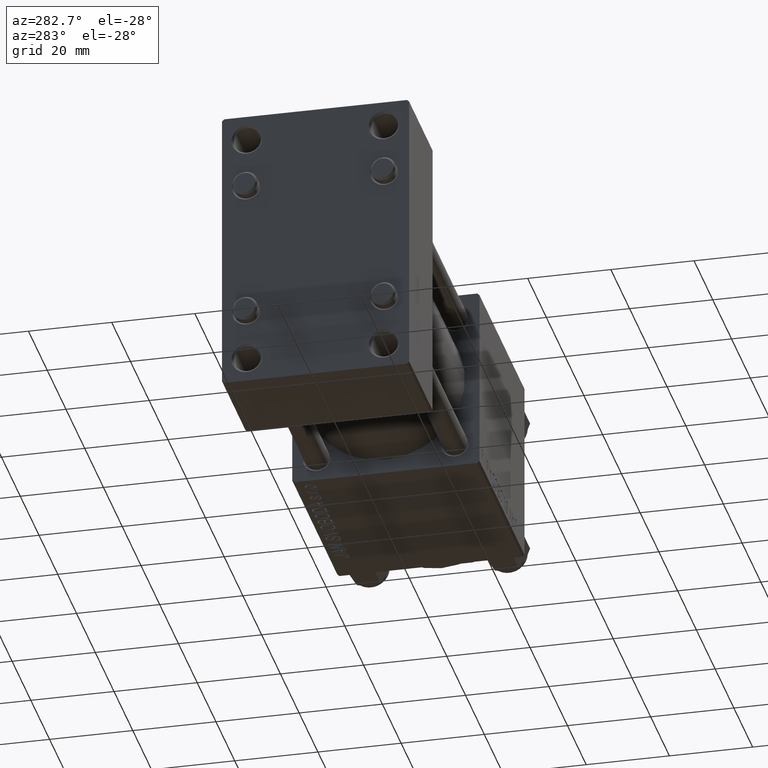
[diagram: clean part render]
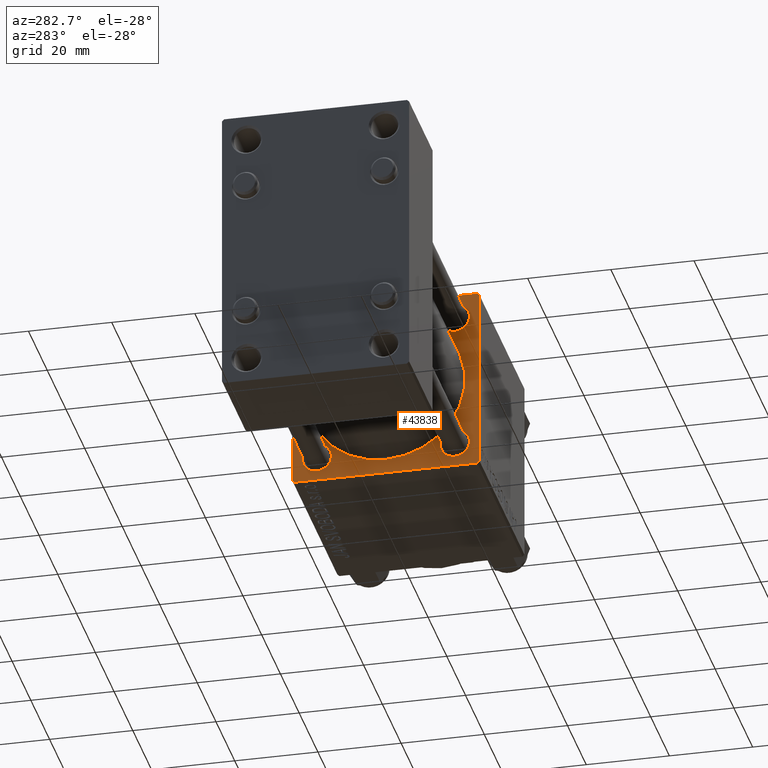
[diagram: same view with one face highlighted and labeled with its STEP entity id]
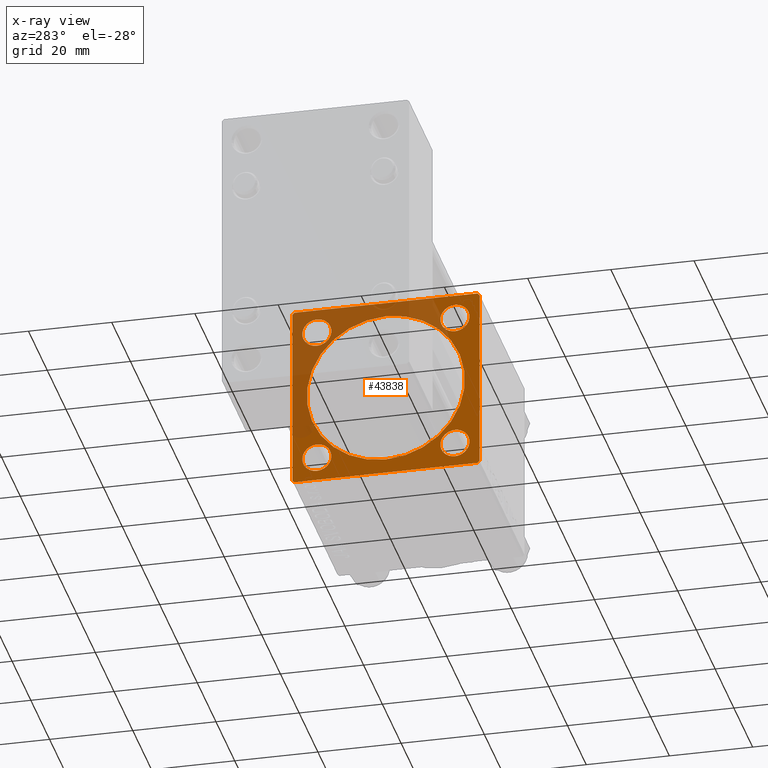
[diagram: x-ray of the same camera — body ghosted, the highlighted face saturated]
A machine part, auxiliary view. The second image highlights one B-rep face of the part: STEP entity #43838.
The next image is the same camera in x-ray: the body ghosted, the highlighted face saturated — about 40% of this face is hidden behind the body in this view.
In plain terms, the highlighted planar face has unit normal (-1, 0, 0).
Its self-contained STEP definition (entity closure, byte-faithful):
#23 = DIRECTION ( 'NONE',  ( 1.000000000000000000, -0.000000000000000000, 0.000000000000000000 ) ) ;
#196 = DIRECTION ( 'NONE',  ( 1.000000000000000000, 0.000000000000000000, 0.000000000000000000 ) ) ;
#1007 = CIRCLE ( 'NONE', #47787, 3.500000000000016875 ) ;
#1367 = DIRECTION ( 'NONE',  ( 0.000000000000000000, 0.000000000000000000, 1.000000000000000000 ) ) ;
#1388 = AXIS2_PLACEMENT_3D ( 'NONE', #5148, #20825, #1367 ) ;
#1623 = DIRECTION ( 'NONE',  ( 0.000000000000000000, 0.000000000000000000, 1.000000000000000000 ) ) ;
#2427 = EDGE_CURVE ( 'NONE', #37750, #40066, #20123, .T. ) ;
#2621 = VECTOR ( 'NONE', #45109, 1000.000000000000114 ) ;
#2850 = FACE_OUTER_BOUND ( 'NONE', #37870, .T. ) ;
#2966 = DIRECTION ( 'NONE',  ( 1.000000000000000000, -0.000000000000000000, 0.000000000000000000 ) ) ;
#3200 = VERTEX_POINT ( 'NONE', #33946 ) ;
#3301 = EDGE_CURVE ( 'NONE', #3200, #23792, #48404, .T. ) ;
#3533 = CARTESIAN_POINT ( 'NONE',  ( 75.00000000000001421, -2.602085213965210642E-15, 19.00000000000000000 ) ) ;
#4818 = AXIS2_PLACEMENT_3D ( 'NONE', #27361, #31143, #42526 ) ;
#5148 = CARTESIAN_POINT ( 'NONE',  ( 75.00000000000001421, -16.59999999999999076, 16.60000000000000853 ) ) ;
#5262 = ORIENTED_EDGE ( 'NONE', *, *, #48219, .T. ) ;
#5764 = LINE ( 'NONE', #9573, #12476 ) ;
#5867 = VECTOR ( 'NONE', #14185, 1000.000000000000114 ) ;
#5956 = EDGE_CURVE ( 'NONE', #39677, #9238, #8963, .T. ) ;
#6247 = VERTEX_POINT ( 'NONE', #32228 ) ;
#6844 = EDGE_CURVE ( 'NONE', #27018, #30174, #49234, .T. ) ;
#7336 = VECTOR ( 'NONE', #38091, 999.9999999999998863 ) ;
#7411 = EDGE_CURVE ( 'NONE', #18271, #21492, #10603, .T. ) ;
#8075 = LINE ( 'NONE', #20212, #30470 ) ;
#8400 = CARTESIAN_POINT ( 'NONE',  ( 75.00000000000001421, 22.50000000000000355, 22.50000000000000355 ) ) ;
#8728 = VERTEX_POINT ( 'NONE', #33693 ) ;
#8963 = CIRCLE ( 'NONE', #28332, 3.500000000000016875 ) ;
#9238 = VERTEX_POINT ( 'NONE', #42793 ) ;
#9516 = AXIS2_PLACEMENT_3D ( 'NONE', #43167, #16390, #38610 ) ;
#9573 = CARTESIAN_POINT ( 'NONE',  ( 75.00000000000001421, 22.25000000000029843, 22.24999999999968381 ) ) ;
#9728 = ORIENTED_EDGE ( 'NONE', *, *, #30131, .T. ) ;
#9883 = VERTEX_POINT ( 'NONE', #15787 ) ;
#9938 = CIRCLE ( 'NONE', #47876, 3.500000000000016875 ) ;
#10206 = FACE_BOUND ( 'NONE', #36630, .T. ) ;
#10603 = LINE ( 'NONE', #37607, #32368 ) ;
#11009 = LINE ( 'NONE', #37259, #2621 ) ;
#11586 = CARTESIAN_POINT ( 'NONE',  ( 75.00000000000001421, -2.602085213965210642E-15, 0.000000000000000000 ) ) ;
#11671 = CARTESIAN_POINT ( 'NONE',  ( 75.00000000000001421, 16.59999999999999787, -16.60000000000000497 ) ) ;
#12150 = EDGE_CURVE ( 'NONE', #8728, #38850, #13062, .T. ) ;
#12476 = VECTOR ( 'NONE', #28760, 1000.000000000000000 ) ;
#12673 = DIRECTION ( 'NONE',  ( 1.000000000000000000, -0.000000000000000000, 0.000000000000000000 ) ) ;
#13062 = CIRCLE ( 'NONE', #13887, 3.500000000000016875 ) ;
#13548 = EDGE_CURVE ( 'NONE', #9238, #39677, #1007, .T. ) ;
#13622 = CARTESIAN_POINT ( 'NONE',  ( 75.00000000000001421, -22.49999999999999645, -21.99999999999997868 ) ) ;
#13887 = AXIS2_PLACEMENT_3D ( 'NONE', #41371, #2966, #49210 ) ;
#13943 = EDGE_CURVE ( 'NONE', #21492, #14336, #18709, .T. ) ;
#13990 = DIRECTION ( 'NONE',  ( -0.000000000000000000, 0.000000000000000000, 1.000000000000000000 ) ) ;
#14185 = DIRECTION ( 'NONE',  ( -0.000000000000000000, -0.7071067811865474617, -0.7071067811865474617 ) ) ;
#14233 = CARTESIAN_POINT ( 'NONE',  ( 75.00000000000001421, 22.50000000000000355, -21.99999999999996803 ) ) ;
#14274 = ORIENTED_EDGE ( 'NONE', *, *, #7411, .T. ) ;
#14336 = VERTEX_POINT ( 'NONE', #31244 ) ;
#14515 = CARTESIAN_POINT ( 'NONE',  ( 75.00000000000001421, -16.59999999999999076, 13.09999999999999076 ) ) ;
#15748 = EDGE_CURVE ( 'NONE', #40066, #37750, #16405, .T. ) ;
#15787 = CARTESIAN_POINT ( 'NONE',  ( 75.00000000000001421, -16.59999999999999076, 20.10000000000002274 ) ) ;
#15947 = DIRECTION ( 'NONE',  ( 0.000000000000000000, 0.000000000000000000, 1.000000000000000000 ) ) ;
#16390 = DIRECTION ( 'NONE',  ( 1.000000000000000000, -0.000000000000000000, 0.000000000000000000 ) ) ;
#16405 = CIRCLE ( 'NONE', #28480, 3.500000000000016875 ) ;
#17206 = DIRECTION ( 'NONE',  ( 0.000000000000000000, 0.000000000000000000, 1.000000000000000000 ) ) ;
#17751 = ORIENTED_EDGE ( 'NONE', *, *, #3301, .T. ) ;
#18021 = LINE ( 'NONE', #40262, #37551 ) ;
#18266 = CARTESIAN_POINT ( 'NONE',  ( 75.00000000000001421, 0.000000000000000000, 0.000000000000000000 ) ) ;
#18271 = VERTEX_POINT ( 'NONE', #37355 ) ;
#18343 = CIRCLE ( 'NONE', #49808, 19.00000000000000000 ) ;
#18465 = CARTESIAN_POINT ( 'NONE',  ( 75.00000000000001421, 22.24999999999999289, -22.24999999999999289 ) ) ;
#18709 = LINE ( 'NONE', #18465, #5867 ) ;
#19216 = CARTESIAN_POINT ( 'NONE',  ( 75.00000000000001421, -22.49999999999999645, 21.99999999999997868 ) ) ;
#20123 = CIRCLE ( 'NONE', #48371, 3.500000000000016875 ) ;
#20212 = CARTESIAN_POINT ( 'NONE',  ( 75.00000000000001421, -22.49999999999999645, 22.49999999999999289 ) ) ;
#20825 = DIRECTION ( 'NONE',  ( 1.000000000000000000, -0.000000000000000000, 0.000000000000000000 ) ) ;
#20828 = CARTESIAN_POINT ( 'NONE',  ( 75.00000000000001421, 16.59999999999999787, -16.60000000000000497 ) ) ;
#20996 = EDGE_LOOP ( 'NONE', ( #26101, #28957 ) ) ;
#21049 = EDGE_CURVE ( 'NONE', #41313, #38207, #11009, .T. ) ;
#21492 = VERTEX_POINT ( 'NONE', #14233 ) ;
#21495 = CARTESIAN_POINT ( 'NONE',  ( 75.00000000000001421, 16.59999999999999787, 16.60000000000000497 ) ) ;
#23792 = VERTEX_POINT ( 'NONE', #3533 ) ;
#23815 = DIRECTION ( 'NONE',  ( 0.000000000000000000, -1.000000000000000000, -2.312964634635742957E-16 ) ) ;
#24302 = CARTESIAN_POINT ( 'NONE',  ( 75.00000000000001421, -21.99999999999996803, 22.49999999999999289 ) ) ;
#24790 = CARTESIAN_POINT ( 'NONE',  ( 75.00000000000001421, -16.59999999999999076, 16.60000000000000853 ) ) ;
#26101 = ORIENTED_EDGE ( 'NONE', *, *, #5956, .T. ) ;
#27018 = VERTEX_POINT ( 'NONE', #37064 ) ;
#27361 = CARTESIAN_POINT ( 'NONE',  ( 75.00000000000001421, -2.602085213965210642E-15, 0.000000000000000000 ) ) ;
#28060 = DIRECTION ( 'NONE',  ( 0.000000000000000000, 0.000000000000000000, 1.000000000000000000 ) ) ;
#28332 = AXIS2_PLACEMENT_3D ( 'NONE', #11671, #23, #15947 ) ;
#28480 = AXIS2_PLACEMENT_3D ( 'NONE', #30265, #29521, #41148 ) ;
#28760 = DIRECTION ( 'NONE',  ( 0.000000000000000000, 0.7071067811865378028, -0.7071067811865573427 ) ) ;
#28841 = ORIENTED_EDGE ( 'NONE', *, *, #15748, .T. ) ;
#28957 = ORIENTED_EDGE ( 'NONE', *, *, #13548, .T. ) ;
#29521 = DIRECTION ( 'NONE',  ( 1.000000000000000000, -0.000000000000000000, 0.000000000000000000 ) ) ;
#29697 = VERTEX_POINT ( 'NONE', #14515 ) ;
#29791 = DIRECTION ( 'NONE',  ( 1.000000000000000000, -0.000000000000000000, 0.000000000000000000 ) ) ;
#30053 = EDGE_LOOP ( 'NONE', ( #44750, #17751 ) ) ;
#30118 = PLANE ( 'NONE',  #49097 ) ;
#30131 = EDGE_CURVE ( 'NONE', #6247, #18271, #5764, .T. ) ;
#30174 = VERTEX_POINT ( 'NONE', #13622 ) ;
#30265 = CARTESIAN_POINT ( 'NONE',  ( 75.00000000000001421, 16.59999999999999787, 16.60000000000000497 ) ) ;
#30470 = VECTOR ( 'NONE', #31560, 1000.000000000000000 ) ;
#31143 = DIRECTION ( 'NONE',  ( 1.000000000000000000, 0.000000000000000000, 0.000000000000000000 ) ) ;
#31244 = CARTESIAN_POINT ( 'NONE',  ( 75.00000000000001421, 21.99999999999998934, -22.49999999999999645 ) ) ;
#31560 = DIRECTION ( 'NONE',  ( 0.000000000000000000, 0.000000000000000000, -1.000000000000000000 ) ) ;
#32228 = CARTESIAN_POINT ( 'NONE',  ( 75.00000000000001421, 21.99999999999997513, 22.50000000000000355 ) ) ;
#32368 = VECTOR ( 'NONE', #49241, 1000.000000000000000 ) ;
#32660 = ORIENTED_EDGE ( 'NONE', *, *, #42263, .T. ) ;
#32716 = ORIENTED_EDGE ( 'NONE', *, *, #45302, .F. ) ;
#33159 = FACE_BOUND ( 'NONE', #20996, .T. ) ;
#33491 = EDGE_CURVE ( 'NONE', #14336, #27018, #18021, .T. ) ;
#33693 = CARTESIAN_POINT ( 'NONE',  ( 75.00000000000001421, -16.59999999999999076, -20.10000000000002274 ) ) ;
#33946 = CARTESIAN_POINT ( 'NONE',  ( 75.00000000000001421, -2.752562955852396712E-16, -19.00000000000000000 ) ) ;
#35932 = ORIENTED_EDGE ( 'NONE', *, *, #12150, .T. ) ;
#36212 = DIRECTION ( 'NONE',  ( 1.000000000000000000, -0.000000000000000000, 0.000000000000000000 ) ) ;
#36469 = CARTESIAN_POINT ( 'NONE',  ( 75.00000000000001421, 16.59999999999999787, 20.10000000000001918 ) ) ;
#36475 = CARTESIAN_POINT ( 'NONE',  ( 75.00000000000001421, 16.59999999999999787, -13.09999999999998721 ) ) ;
#36630 = EDGE_LOOP ( 'NONE', ( #5262, #43951 ) ) ;
#36706 = ORIENTED_EDGE ( 'NONE', *, *, #38394, .F. ) ;
#36801 = EDGE_CURVE ( 'NONE', #29697, #9883, #48188, .T. ) ;
#37064 = CARTESIAN_POINT ( 'NONE',  ( 75.00000000000001421, -21.99999999999998224, -22.50000000000000000 ) ) ;
#37196 = FACE_BOUND ( 'NONE', #49275, .T. ) ;
#37259 = CARTESIAN_POINT ( 'NONE',  ( 75.00000000000001421, -22.24999999999998579, 22.24999999999998579 ) ) ;
#37355 = CARTESIAN_POINT ( 'NONE',  ( 75.00000000000001421, 22.50000000000000355, 21.99999999999996092 ) ) ;
#37551 = VECTOR ( 'NONE', #48358, 1000.000000000000000 ) ;
#37607 = CARTESIAN_POINT ( 'NONE',  ( 75.00000000000001421, 22.50000000000000355, 22.50000000000000355 ) ) ;
#37693 = ORIENTED_EDGE ( 'NONE', *, *, #6844, .T. ) ;
#37750 = VERTEX_POINT ( 'NONE', #36469 ) ;
#37870 = EDGE_LOOP ( 'NONE', ( #47857, #37693, #36706, #44319, #32716, #9728, #14274, #47224 ) ) ;
#38091 = DIRECTION ( 'NONE',  ( 0.000000000000000000, -0.7071067811865425767, 0.7071067811865525687 ) ) ;
#38207 = VERTEX_POINT ( 'NONE', #24302 ) ;
#38343 = CARTESIAN_POINT ( 'NONE',  ( 75.00000000000001421, -22.25000000000015277, -22.24999999999984013 ) ) ;
#38394 = EDGE_CURVE ( 'NONE', #41313, #30174, #8075, .T. ) ;
#38610 = DIRECTION ( 'NONE',  ( 0.000000000000000000, 0.000000000000000000, 1.000000000000000000 ) ) ;
#38850 = VERTEX_POINT ( 'NONE', #38959 ) ;
#38959 = CARTESIAN_POINT ( 'NONE',  ( 75.00000000000001421, -16.59999999999999076, -13.09999999999999076 ) ) ;
#39677 = VERTEX_POINT ( 'NONE', #36475 ) ;
#40066 = VERTEX_POINT ( 'NONE', #44521 ) ;
#40262 = CARTESIAN_POINT ( 'NONE',  ( 75.00000000000001421, 22.50000000000000355, -22.49999999999999645 ) ) ;
#40560 = EDGE_CURVE ( 'NONE', #23792, #3200, #18343, .T. ) ;
#40977 = CIRCLE ( 'NONE', #9516, 3.500000000000016875 ) ;
#41148 = DIRECTION ( 'NONE',  ( 0.000000000000000000, 0.000000000000000000, 1.000000000000000000 ) ) ;
#41242 = DIRECTION ( 'NONE',  ( -1.000000000000000000, 0.000000000000000000, -0.000000000000000000 ) ) ;
#41313 = VERTEX_POINT ( 'NONE', #19216 ) ;
#41371 = CARTESIAN_POINT ( 'NONE',  ( 75.00000000000001421, -16.59999999999999076, -16.60000000000000853 ) ) ;
#42263 = EDGE_CURVE ( 'NONE', #38850, #8728, #40977, .T. ) ;
#42526 = DIRECTION ( 'NONE',  ( 0.000000000000000000, 0.000000000000000000, -1.000000000000000000 ) ) ;
#42633 = DIRECTION ( 'NONE',  ( 0.000000000000000000, 0.000000000000000000, -1.000000000000000000 ) ) ;
#42793 = CARTESIAN_POINT ( 'NONE',  ( 75.00000000000001421, 16.59999999999999787, -20.10000000000001918 ) ) ;
#43010 = LINE ( 'NONE', #8400, #48354 ) ;
#43167 = CARTESIAN_POINT ( 'NONE',  ( 75.00000000000001421, -16.59999999999999076, -16.60000000000000853 ) ) ;
#43838 = ADVANCED_FACE ( 'NONE', ( #10206, #48841, #33159, #37196, #49330, #2850 ), #30118, .T. ) ;
#43951 = ORIENTED_EDGE ( 'NONE', *, *, #36801, .T. ) ;
#44319 = ORIENTED_EDGE ( 'NONE', *, *, #21049, .T. ) ;
#44521 = CARTESIAN_POINT ( 'NONE',  ( 75.00000000000001421, 16.59999999999999787, 13.09999999999998721 ) ) ;
#44705 = EDGE_LOOP ( 'NONE', ( #49579, #28841 ) ) ;
#44750 = ORIENTED_EDGE ( 'NONE', *, *, #40560, .T. ) ;
#45109 = DIRECTION ( 'NONE',  ( -0.000000000000000000, 0.7071067811865474617, 0.7071067811865474617 ) ) ;
#45302 = EDGE_CURVE ( 'NONE', #6247, #38207, #43010, .T. ) ;
#47224 = ORIENTED_EDGE ( 'NONE', *, *, #13943, .T. ) ;
#47787 = AXIS2_PLACEMENT_3D ( 'NONE', #20828, #36212, #1623 ) ;
#47857 = ORIENTED_EDGE ( 'NONE', *, *, #33491, .T. ) ;
#47876 = AXIS2_PLACEMENT_3D ( 'NONE', #24790, #12673, #28060 ) ;
#48188 = CIRCLE ( 'NONE', #1388, 3.500000000000016875 ) ;
#48219 = EDGE_CURVE ( 'NONE', #9883, #29697, #9938, .T. ) ;
#48354 = VECTOR ( 'NONE', #23815, 1000.000000000000000 ) ;
#48358 = DIRECTION ( 'NONE',  ( 0.000000000000000000, -1.000000000000000000, -7.709882115452476934E-17 ) ) ;
#48371 = AXIS2_PLACEMENT_3D ( 'NONE', #21495, #29791, #17206 ) ;
#48404 = CIRCLE ( 'NONE', #4818, 19.00000000000000000 ) ;
#48841 = FACE_BOUND ( 'NONE', #44705, .T. ) ;
#49097 = AXIS2_PLACEMENT_3D ( 'NONE', #18266, #41242, #13990 ) ;
#49210 = DIRECTION ( 'NONE',  ( 0.000000000000000000, 0.000000000000000000, 1.000000000000000000 ) ) ;
#49234 = LINE ( 'NONE', #38343, #7336 ) ;
#49241 = DIRECTION ( 'NONE',  ( 0.000000000000000000, 0.000000000000000000, -1.000000000000000000 ) ) ;
#49275 = EDGE_LOOP ( 'NONE', ( #32660, #35932 ) ) ;
#49330 = FACE_BOUND ( 'NONE', #30053, .T. ) ;
#49579 = ORIENTED_EDGE ( 'NONE', *, *, #2427, .T. ) ;
#49808 = AXIS2_PLACEMENT_3D ( 'NONE', #11586, #196, #42633 ) ;